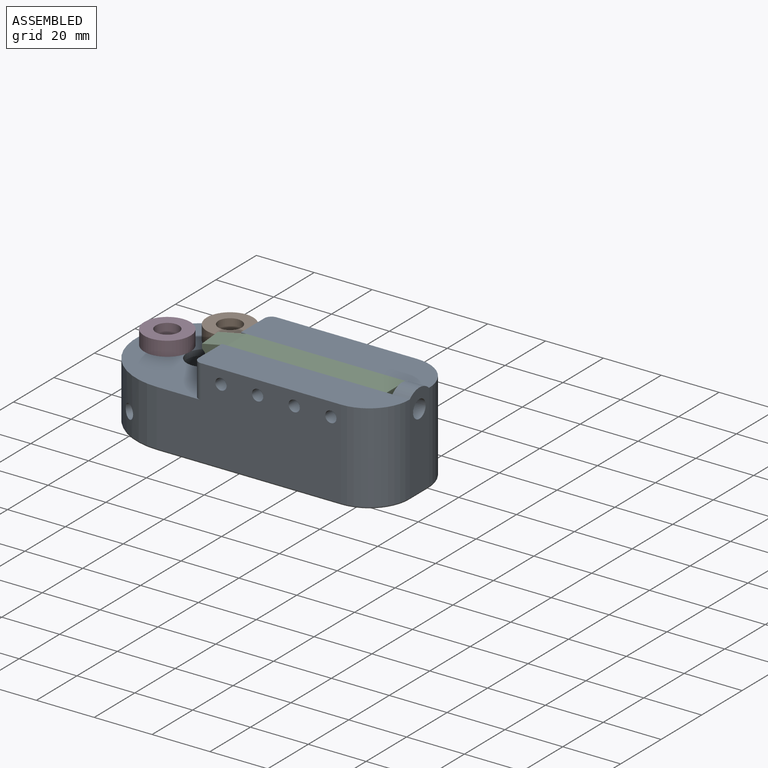
[diagram: assembled view]
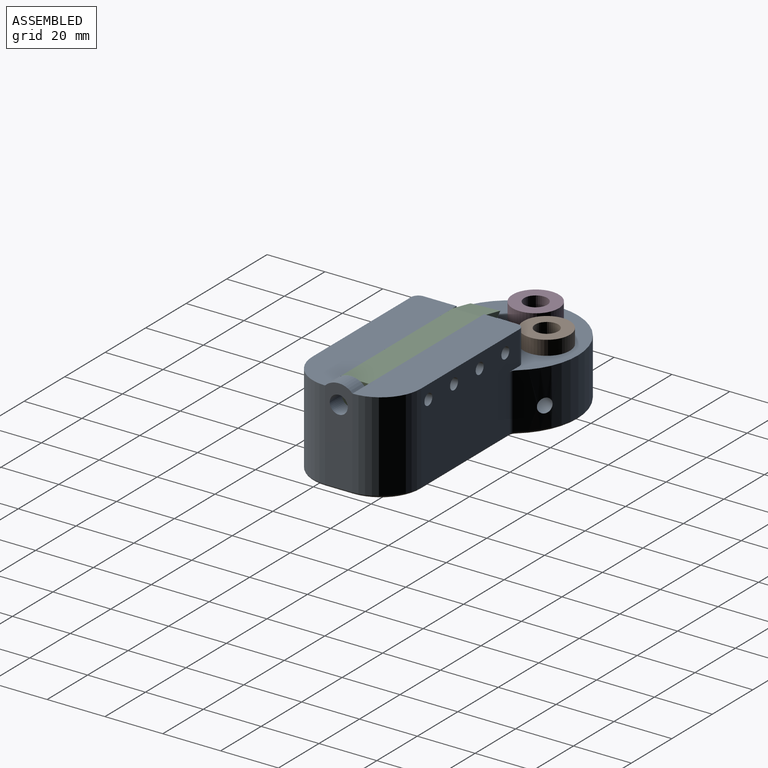
[diagram: assembled view, second angle]
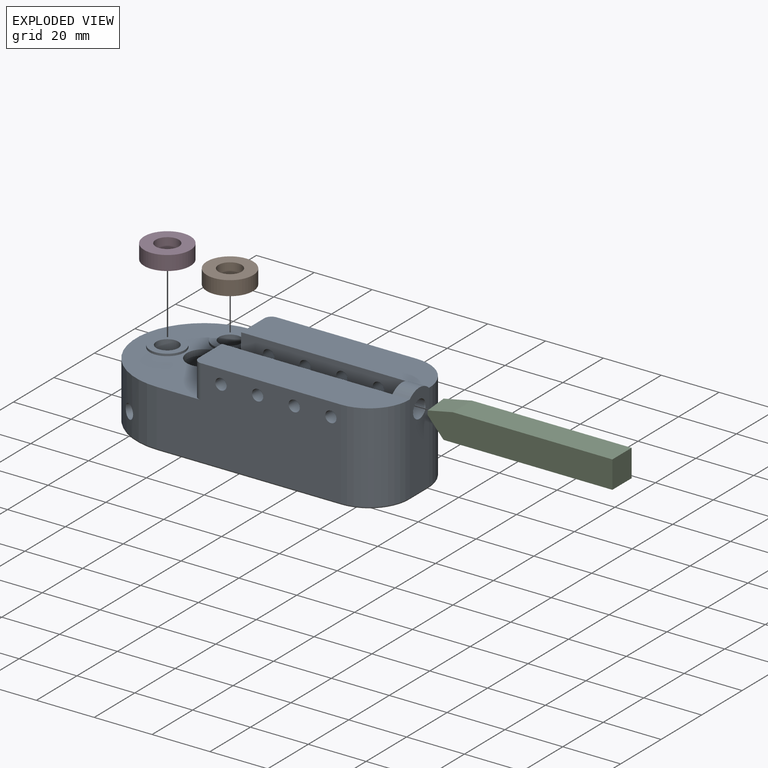
[diagram: exploded view]
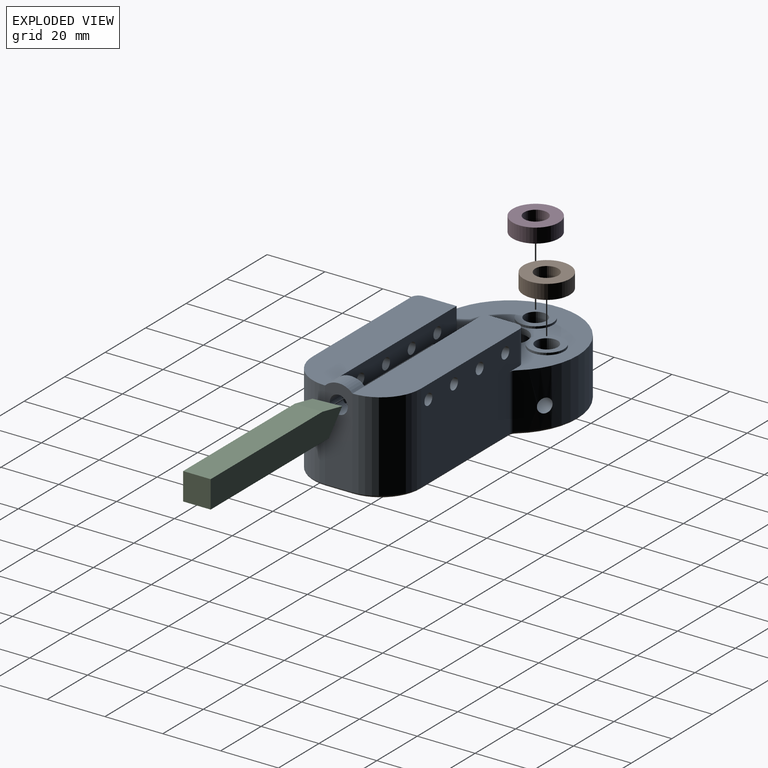
[diagram: exploded view, second angle]
ASSEMBLY  parts=4 mates=3
PART A: 51 faces, bbox 104.3x50.9x33.5 mm
  f0: plane 99.75x45.5mm, normal (0,0,-1), area 3191.8mm2, adj f38,f39,f40,f41,f42,f43,f44,f45
  f1: plane 65x14mm, normal (0,0,1), area 866.6mm2, adj f6,f10,f11,f33,f35,f49
  f2: cylinder r=9.5mm len=17.25mm, axis (0,0,-1), area 198.7mm2, adj f16,f17,f18,f43
  f3: cylinder r=9.5mm len=18.85mm, axis (0,0,-1), area 675.5mm2, adj f16,f17,f18,f31,f32,f46
  f4: cylinder r=6mm len=12mm, axis (0,0,-1), area 75.4mm2, adj f7,f16
  f5: cylinder r=23.5mm len=47mm, axis (0,0,-1), area 1783mm2, adj f6,f7,f31,f32,f37,f40
  f6: plane 63.75x30.75mm, normal (0,-1,0), area 1737.2mm2, adj f1,f5,f7,f27,f28,f29,f30,f35
  f7: plane 47x43.59mm, normal (0,0,1), area 1134.6mm2, adj f4,f5,f6,f11,f13,f19,f21,f35
  f8: plane 59x9.5mm, normal (0,-1,0), area 512.7mm2, adj f9,f11,f14,f15,f23,f24,f25,f26
  f9: plane 11.47x9.5mm, normal (-1,0,0), area 72.9mm2, adj f8,f10,f15,f33,f34
  f10: plane 59x9.5mm, normal (0,1,0), area 512.7mm2, adj f1,f9,f11,f15,f27,f28,f29,f30
  f11: plane 32.5x11.5mm, normal (-1,0,0), area 283.5mm2, adj f1,f7,f8,f10,f14,f15,f35,f36
  f12: plane 32.72x9.5mm, normal (1,0,0), area 274.8mm2, adj f33,f34,f39,f47,f49
  f13: plane 48.5x30.75mm, normal (0,1,0), area 1350.4mm2, adj f7,f14,f23,f24,f25,f26,f36,f37
  f14: plane 65x14mm, normal (0,0,1), area 866.6mm2, adj f8,f11,f13,f33,f36,f47
  f15: plane 59x9.5mm, normal (0,0,1), area 560.5mm2, adj f8,f9,f10,f11
  f16: plane 18.85x18.85mm, normal (0,0,-1), area 167.9mm2, adj f2,f3,f4,f17,f18
  f17: cylinder r=3.8mm len=20mm, axis (0,0,1), area 417mm2, adj f2,f3,f16,f22,f44
  f18: cylinder r=3.8mm len=20mm, axis (0,0,1), area 417mm2, adj f2,f3,f16,f20,f45
  f19: cylinder r=6mm len=12mm, axis (0,0,-1), area 28.3mm2, adj f7,f20
  f20: plane 12x12mm, normal (0,0,1), area 67.7mm2, adj f18,f19
  f21: cylinder r=6mm len=12mm, axis (0,0,-1), area 28.3mm2, adj f7,f22
  f22: plane 12x12mm, normal (0,0,1), area 67.7mm2, adj f17,f21
  f23: cylinder r=1.95mm len=14mm, axis (0,1,0), area 171.5mm2, adj f8,f13
  f24: cylinder r=1.95mm len=14mm, axis (0,1,0), area 171.5mm2, adj f8,f13
  f25: cylinder r=1.95mm len=14mm, axis (0,1,0), area 171.5mm2, adj f8,f13
  f26: cylinder r=1.95mm len=14mm, axis (0,1,0), area 171.5mm2, adj f8,f13
  f27: cylinder r=1.95mm len=14mm, axis (0,1,0), area 171.5mm2, adj f6,f10
  f28: cylinder r=1.95mm len=14mm, axis (0,1,0), area 171.5mm2, adj f6,f10
  f29: cylinder r=1.95mm len=14mm, axis (0,1,0), area 171.5mm2, adj f6,f10
  f30: cylinder r=1.95mm len=14mm, axis (0,1,0), area 171.5mm2, adj f6,f10
  f31: cylinder r=2.45mm len=14.85mm, axis (0.5,0.87,0), area 217mm2, adj f3,f5
  f32: cylinder r=2.45mm len=14.85mm, axis (0.5,0.87,0), area 217mm2, adj f3,f5
  f33: cylinder r=6.72mm len=9.5mm, axis (-1,0,0), area 63.3mm2, adj f1,f9,f12,f14
  f34: cylinder r=3.1mm len=6.2mm, axis (-1,0,0), area 116.9mm2, adj f9,f12
  f35: cylinder r=2.5mm len=11.5mm, axis (0,0,-1), area 45.2mm2, adj f1,f6,f7,f11
  f36: cylinder r=2.5mm len=11.5mm, axis (0,0,-1), area 45.2mm2, adj f7,f11,f13,f14
  f37: cylinder r=2.5mm len=19.25mm, axis (0,0,-1), area 42.5mm2, adj f5,f7,f13,f42
  f38: cylinder r=0.75mm len=63.75mm, axis (1,0,0), area 75.1mm2, adj f0,f6,f40,f50
  f39: cylinder r=0.75mm len=9.5mm, axis (0,1,0), area 11.2mm2, adj f0,f12,f48,f50
  f40: torus R=22.75mm, axis (0,0,1), area 110.1mm2, adj f0,f5,f38,f42
  f41: cylinder r=0.75mm len=43.66mm, axis (-1,0,0), area 51.4mm2, adj f0,f13,f42,f48
  f42: torus R=3.25mm, axis (0,0,1), area 2.9mm2, adj f0,f37,f40,f41
  f43: torus R=10.25mm, axis (0,0,1), area 12.4mm2, adj f0,f2,f44,f45
  f44: torus R=4.55mm, axis (0,0,1), area 24.2mm2, adj f0,f17,f43,f46
  f45: torus R=4.55mm, axis (0,0,1), area 24.2mm2, adj f0,f18,f43,f46
  f46: torus R=10.25mm, axis (0,0,1), area 48.6mm2, adj f0,f3,f44,f45
  f47: cylinder r=14mm len=30.75mm, axis (0,0,1), area 676.2mm2, adj f12,f13,f14,f48
  f48: torus R=13.25mm, axis (0,0,1), area 25.4mm2, adj f0,f39,f41,f47
  f49: cylinder r=14mm len=30.75mm, axis (0,0,1), area 676.2mm2, adj f1,f6,f12,f50
  f50: torus R=13.25mm, axis (0,0,1), area 25.4mm2, adj f0,f38,f39,f49
PART B: 4 faces, bbox 16x16x5 mm
  f0: cylinder r=4mm len=8mm, axis (0,0,-1), area 125.7mm2, adj f2,f3
  f1: cylinder r=8mm len=16mm, axis (0,0,-1), area 251.3mm2, adj f2,f3
  f2: plane 16x16mm, normal (0,0,1), area 150.8mm2, adj f0,f1
  f3: plane 16x16mm, normal (0,0,-1), area 150.8mm2, adj f0,f1
PART C: 8 faces, bbox 65x9.5x9.5 mm
  f0: plane 9.5x9.5mm, normal (1,0,0), area 90.2mm2, adj f1,f3,f4,f5
  f1: plane 65x9.5mm, normal (0,1,0), area 582.8mm2, adj f0,f4,f5,f6,f7
  f2: plane 9.5x1.51mm, normal (-0.99,-0.12,0), area 7.2mm2, adj f3,f6,f7
  f3: plane 63.87x9.5mm, normal (0,-1,0), area 581.9mm2, adj f0,f2,f4,f5,f6,f7
  f4: plane 55.19x9.5mm, normal (0,0,1), area 524.3mm2, adj f0,f1,f3,f7
  f5: plane 58.36x9.5mm, normal (0,0,-1), area 554.4mm2, adj f0,f1,f3,f6
  f6: plane 9.5x7.5mm, normal (-0.75,0,-0.66), area 87mm2, adj f1,f2,f3,f5
  f7: plane 9.82x9.5mm, normal (-0.2,0,0.98), area 89.7mm2, adj f1,f2,f3,f4
PART D: same geometry as B
PLACE A t=(0,0,1)mm
PLACE B t=(12.75,12.75,-28.25)mm
PLACE C t=(0,0,-27)mm
PLACE D t=(0,0,-28.25)mm
MATE fastened A.f17 <-> B.f0  axis (0,0,1) through (0,12.75,21.75)mm
MATE slider A.f33 <-> C.f0  axis (-1,0,0) through (71.75,-4.75,27.75)mm
MATE fastened A.f19 <-> D.f1  axis (0,0,1) through (-12.75,0,21.75)mm
